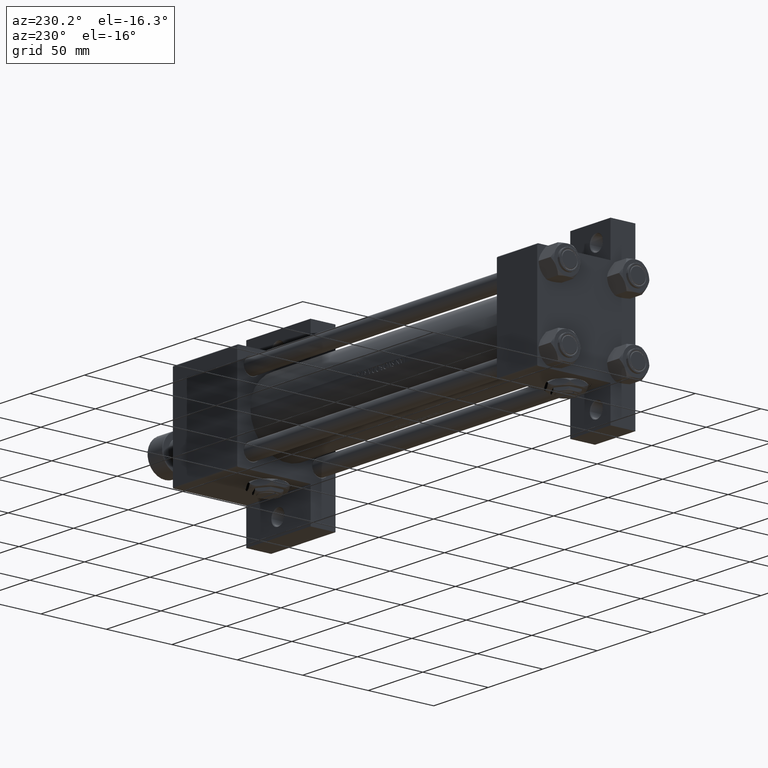
[diagram: clean part render]
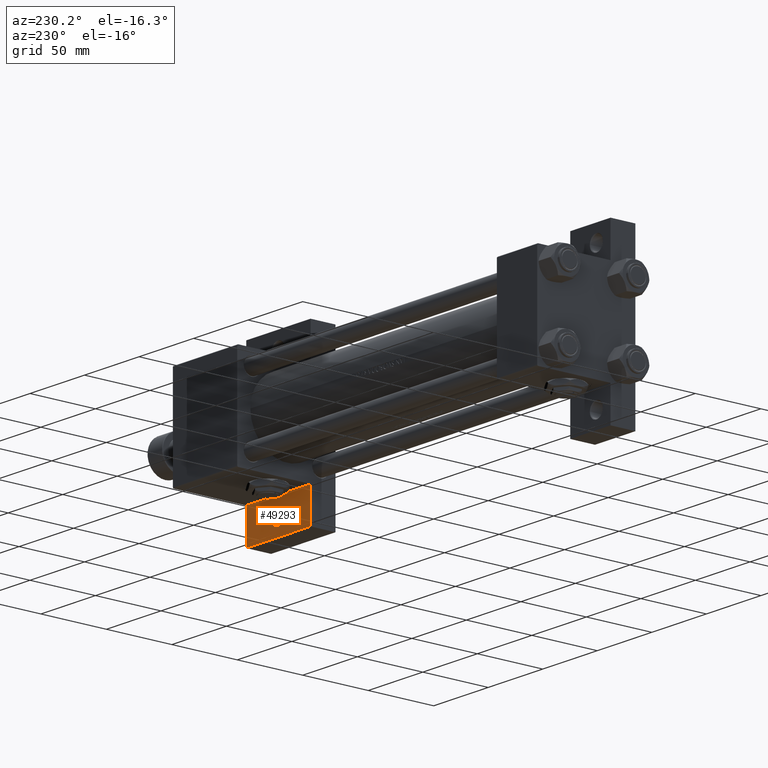
[diagram: same view with one face highlighted and labeled with its STEP entity id]
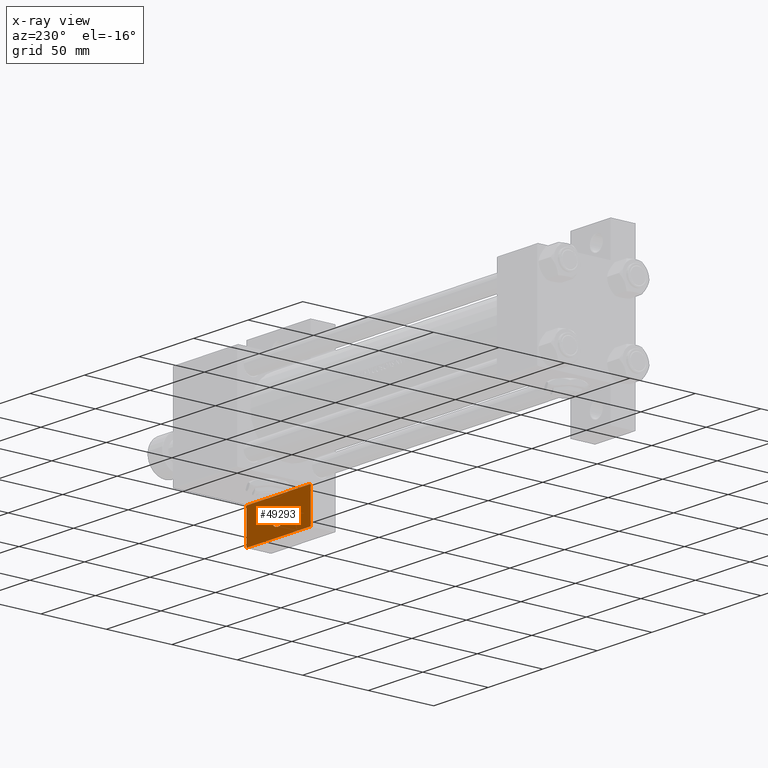
[diagram: x-ray of the same camera — body ghosted, the highlighted face saturated]
A machine part, auxiliary view. The second image highlights one B-rep face of the part: STEP entity #49293.
The next image is the same camera in x-ray: the body ghosted, the highlighted face saturated — about 0% of this face is hidden behind the body in this view.
In plain terms, the highlighted planar face has unit normal (0, 1, 0).
Its self-contained STEP definition (entity closure, byte-faithful):
#152 = VERTEX_POINT ( 'NONE', #1218 ) ;
#615 = VECTOR ( 'NONE', #9614, 1000.000000000000000 ) ;
#1218 = CARTESIAN_POINT ( 'NONE',  ( 274.9999999999999432, 63.49999999999997158, -18.50000000000000000 ) ) ;
#1642 = ORIENTED_EDGE ( 'NONE', *, *, #38858, .F. ) ;
#2036 = LINE ( 'NONE', #37200, #615 ) ;
#3006 = CARTESIAN_POINT ( 'NONE',  ( 274.9999999999999432, 63.49999999999997158, -18.50000000000000000 ) ) ;
#5214 = AXIS2_PLACEMENT_3D ( 'NONE', #49055, #40971, #22508 ) ;
#5430 = EDGE_CURVE ( 'NONE', #28725, #41131, #27065, .T. ) ;
#6292 = AXIS2_PLACEMENT_3D ( 'NONE', #31362, #46780, #49576 ) ;
#6602 = CARTESIAN_POINT ( 'NONE',  ( 310.9995000000000118, 51.00000000000000711, -18.50000000000000000 ) ) ;
#6928 = VECTOR ( 'NONE', #14136, 1000.000000000000000 ) ;
#7324 = FACE_OUTER_BOUND ( 'NONE', #47915, .T. ) ;
#7768 = VECTOR ( 'NONE', #40355, 1000.000000000000000 ) ;
#9614 = DIRECTION ( 'NONE',  ( -0.000000000000000000, 1.000000000000000000, -0.000000000000000000 ) ) ;
#11107 = PLANE ( 'NONE',  #6292 ) ;
#13078 = EDGE_CURVE ( 'NONE', #19506, #40106, #18069, .T. ) ;
#14136 = DIRECTION ( 'NONE',  ( 1.000000000000000000, 0.000000000000000000, 0.000000000000000000 ) ) ;
#15658 = CARTESIAN_POINT ( 'NONE',  ( 304.9999999999999432, 51.00000000000000711, -18.50000000000000000 ) ) ;
#17397 = ORIENTED_EDGE ( 'NONE', *, *, #20714, .F. ) ;
#18069 = LINE ( 'NONE', #25922, #7768 ) ;
#19506 = VERTEX_POINT ( 'NONE', #30875 ) ;
#20714 = EDGE_CURVE ( 'NONE', #40106, #152, #2036, .T. ) ;
#22505 = EDGE_LOOP ( 'NONE', ( #35238, #31997 ) ) ;
#22508 = DIRECTION ( 'NONE',  ( 1.000000000000000000, 0.000000000000000000, 0.000000000000000000 ) ) ;
#23767 = DIRECTION ( 'NONE',  ( -0.000000000000000000, -0.000000000000000000, -1.000000000000000000 ) ) ;
#25490 = EDGE_CURVE ( 'NONE', #27239, #19506, #28501, .T. ) ;
#25922 = CARTESIAN_POINT ( 'NONE',  ( 274.9999999999999432, 37.50000000000000000, -18.50000000000000000 ) ) ;
#27065 = CIRCLE ( 'NONE', #5214, 5.999500000000046462 ) ;
#27239 = VERTEX_POINT ( 'NONE', #33468 ) ;
#28501 = LINE ( 'NONE', #48431, #42011 ) ;
#28725 = VERTEX_POINT ( 'NONE', #6602 ) ;
#29227 = DIRECTION ( 'NONE',  ( 0.000000000000000000, -1.000000000000000000, 0.000000000000000000 ) ) ;
#30875 = CARTESIAN_POINT ( 'NONE',  ( 333.9999999999999432, 37.49999999999993605, -18.50000000000000000 ) ) ;
#31362 = CARTESIAN_POINT ( 'NONE',  ( 0.000000000000000000, 0.000000000000000000, -18.50000000000000000 ) ) ;
#31997 = ORIENTED_EDGE ( 'NONE', *, *, #38980, .T. ) ;
#32796 = CIRCLE ( 'NONE', #44892, 5.999500000000046462 ) ;
#33468 = CARTESIAN_POINT ( 'NONE',  ( 333.9999999999999432, 63.49999999999997158, -18.50000000000000000 ) ) ;
#35238 = ORIENTED_EDGE ( 'NONE', *, *, #5430, .T. ) ;
#35577 = ORIENTED_EDGE ( 'NONE', *, *, #13078, .F. ) ;
#37200 = CARTESIAN_POINT ( 'NONE',  ( 274.9999999999999432, 63.49999999999997158, -18.50000000000000000 ) ) ;
#38035 = ORIENTED_EDGE ( 'NONE', *, *, #25490, .F. ) ;
#38858 = EDGE_CURVE ( 'NONE', #152, #27239, #41473, .T. ) ;
#38942 = FACE_BOUND ( 'NONE', #22505, .T. ) ;
#38980 = EDGE_CURVE ( 'NONE', #41131, #28725, #32796, .T. ) ;
#40106 = VERTEX_POINT ( 'NONE', #42768 ) ;
#40355 = DIRECTION ( 'NONE',  ( -1.000000000000000000, 1.058475341273983980E-15, -0.000000000000000000 ) ) ;
#40971 = DIRECTION ( 'NONE',  ( -0.000000000000000000, -0.000000000000000000, -1.000000000000000000 ) ) ;
#41131 = VERTEX_POINT ( 'NONE', #42221 ) ;
#41473 = LINE ( 'NONE', #3006, #6928 ) ;
#42011 = VECTOR ( 'NONE', #29227, 1000.000000000000000 ) ;
#42221 = CARTESIAN_POINT ( 'NONE',  ( 299.0004999999998745, 51.00000000000000711, -18.50000000000000000 ) ) ;
#42768 = CARTESIAN_POINT ( 'NONE',  ( 274.9999999999999432, 37.50000000000000000, -18.50000000000000355 ) ) ;
#44892 = AXIS2_PLACEMENT_3D ( 'NONE', #15658, #23767, #47005 ) ;
#46780 = DIRECTION ( 'NONE',  ( 0.000000000000000000, 0.000000000000000000, 1.000000000000000000 ) ) ;
#47005 = DIRECTION ( 'NONE',  ( 1.000000000000000000, 0.000000000000000000, 0.000000000000000000 ) ) ;
#47915 = EDGE_LOOP ( 'NONE', ( #17397, #35577, #38035, #1642 ) ) ;
#48431 = CARTESIAN_POINT ( 'NONE',  ( 333.9999999999999432, 63.49999999999997158, -18.50000000000000000 ) ) ;
#49055 = CARTESIAN_POINT ( 'NONE',  ( 304.9999999999999432, 51.00000000000000711, -18.50000000000000000 ) ) ;
#49293 = ADVANCED_FACE ( 'NONE', ( #38942, #7324 ), #11107, .T. ) ;
#49576 = DIRECTION ( 'NONE',  ( 1.000000000000000000, 0.000000000000000000, -0.000000000000000000 ) ) ;